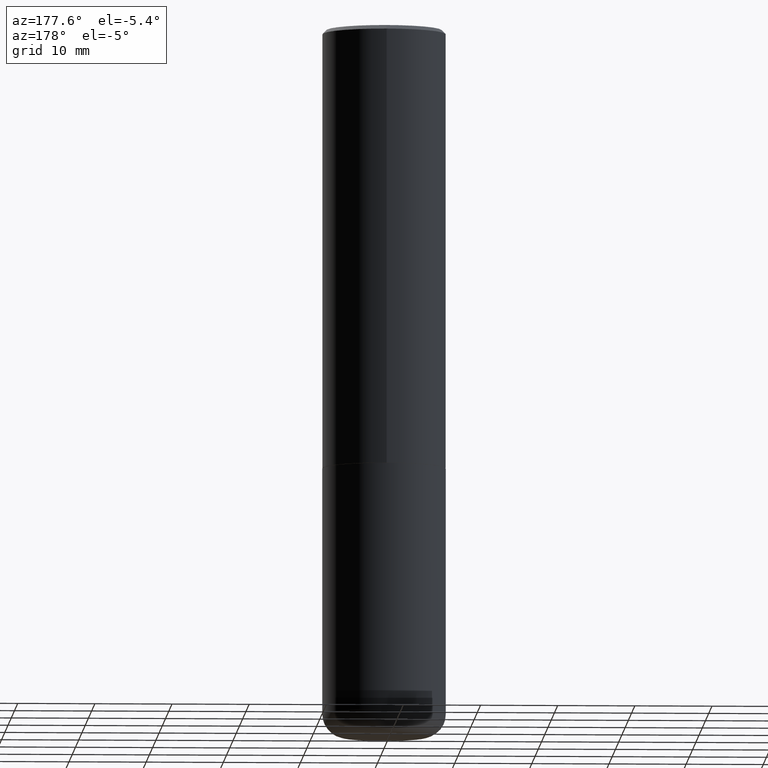
[diagram: clean part render]
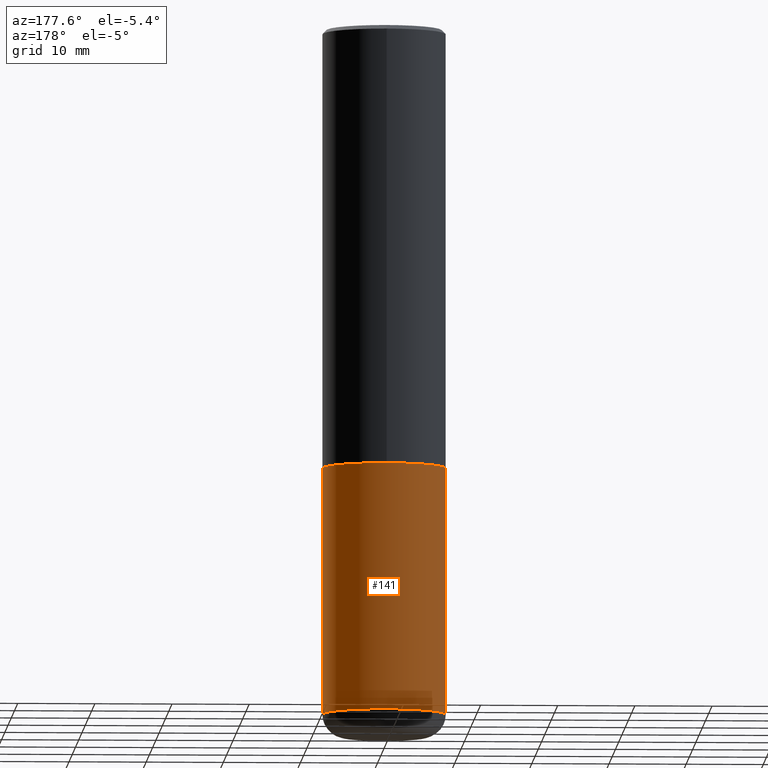
[diagram: same view with one face highlighted and labeled with its STEP entity id]
A machine part, auxiliary view. The second image highlights one B-rep face of the part: STEP entity #141.
In plain terms, the highlighted cylindrical surface (partial cylindrical patch) has radius 7.9997 mm, axis along (-0, 0, 1).
Its self-contained STEP definition (entity closure, byte-faithful):
#4 = EDGE_CURVE ( 'NONE', #197, #285, #134, .T. ) ;
#8 = ORIENTED_EDGE ( 'NONE', *, *, #110, .T. ) ;
#33 = VERTEX_POINT ( 'NONE', #300 ) ;
#41 = EDGE_CURVE ( 'NONE', #33, #197, #117, .T. ) ;
#43 = AXIS2_PLACEMENT_3D ( 'NONE', #304, #61, #355 ) ;
#54 = CARTESIAN_POINT ( 'NONE',  ( -0.3149500000000000077, 2.237854346276435590E-15, -1.549218606675782676E-29 ) ) ;
#61 = DIRECTION ( 'NONE',  ( -2.445468806185136597E-29, 3.491481338843145583E-15, 1.000000000000000000 ) ) ;
#101 = FACE_OUTER_BOUND ( 'NONE', #201, .T. ) ;
#110 = EDGE_CURVE ( 'NONE', #258, #285, #340, .T. ) ;
#115 = EDGE_CURVE ( 'NONE', #33, #258, #325, .T. ) ;
#117 = LINE ( 'NONE', #183, #157 ) ;
#132 = CYLINDRICAL_SURFACE ( 'NONE', #265, 0.3149500000000000077 ) ;
#134 = CIRCLE ( 'NONE', #365, 0.3149500000000000077 ) ;
#141 = ADVANCED_FACE ( 'NONE', ( #101 ), #132, .T. ) ;
#157 = VECTOR ( 'NONE', #308, 39.37007874015748143 ) ;
#177 = DIRECTION ( 'NONE',  ( 1.000000000000000000, -6.982962677686266711E-15, 0.000000000000000000 ) ) ;
#179 = DIRECTION ( 'NONE',  ( -2.445468806185136877E-29, 3.491481338843145188E-15, 1.000000000000000000 ) ) ;
#183 = CARTESIAN_POINT ( 'NONE',  ( 0.3149500000000000077, -2.199284095337289871E-15, 1.535751875536930130E-29 ) ) ;
#197 = VERTEX_POINT ( 'NONE', #311 ) ;
#201 = EDGE_LOOP ( 'NONE', ( #256, #8, #356, #387 ) ) ;
#215 = DIRECTION ( 'NONE',  ( -2.445468806185136597E-29, 3.491481338843145583E-15, 1.000000000000000000 ) ) ;
#224 = VECTOR ( 'NONE', #179, 39.37007874015748143 ) ;
#250 = CARTESIAN_POINT ( 'NONE',  ( 0.000000000000000000, 0.000000000000000000, 0.000000000000000000 ) ) ;
#256 = ORIENTED_EDGE ( 'NONE', *, *, #115, .T. ) ;
#258 = VERTEX_POINT ( 'NONE', #282 ) ;
#265 = AXIS2_PLACEMENT_3D ( 'NONE', #250, #215, #280 ) ;
#280 = DIRECTION ( 'NONE',  ( 1.000000000000000000, -6.982962677686266711E-15, 4.876176775795936353E-29 ) ) ;
#282 = CARTESIAN_POINT ( 'NONE',  ( -0.3149500000000001743, -9.995947116896060296E-15, -3.503899999999999793 ) ) ;
#285 = VERTEX_POINT ( 'NONE', #349 ) ;
#300 = CARTESIAN_POINT ( 'NONE',  ( 0.3149500000000001743, -1.443308555850978931E-14, -3.503899999999999793 ) ) ;
#302 = CARTESIAN_POINT ( 'NONE',  ( 5.487632001079445967E-29, -7.834884124364017250E-15, -2.243999999999999773 ) ) ;
#304 = CARTESIAN_POINT ( 'NONE',  ( 8.568678149992099474E-29, -1.223380146317249786E-14, -3.503899999999999793 ) ) ;
#308 = DIRECTION ( 'NONE',  ( -2.445468806185136877E-29, 3.491481338843145188E-15, 1.000000000000000000 ) ) ;
#311 = CARTESIAN_POINT ( 'NONE',  ( 0.3149500000000000077, -1.003416821970130712E-14, -2.243999999999999773 ) ) ;
#325 = CIRCLE ( 'NONE', #43, 0.3149500000000000077 ) ;
#340 = LINE ( 'NONE', #54, #224 ) ;
#349 = CARTESIAN_POINT ( 'NONE',  ( -0.3149500000000000077, -7.796488447491823147E-15, -2.243999999999999773 ) ) ;
#355 = DIRECTION ( 'NONE',  ( 1.000000000000000000, -6.982962677686263555E-15, 0.000000000000000000 ) ) ;
#356 = ORIENTED_EDGE ( 'NONE', *, *, #4, .F. ) ;
#365 = AXIS2_PLACEMENT_3D ( 'NONE', #302, #405, #177 ) ;
#387 = ORIENTED_EDGE ( 'NONE', *, *, #41, .F. ) ;
#405 = DIRECTION ( 'NONE',  ( -2.445468806185136597E-29, 3.491481338843145583E-15, 1.000000000000000000 ) ) ;